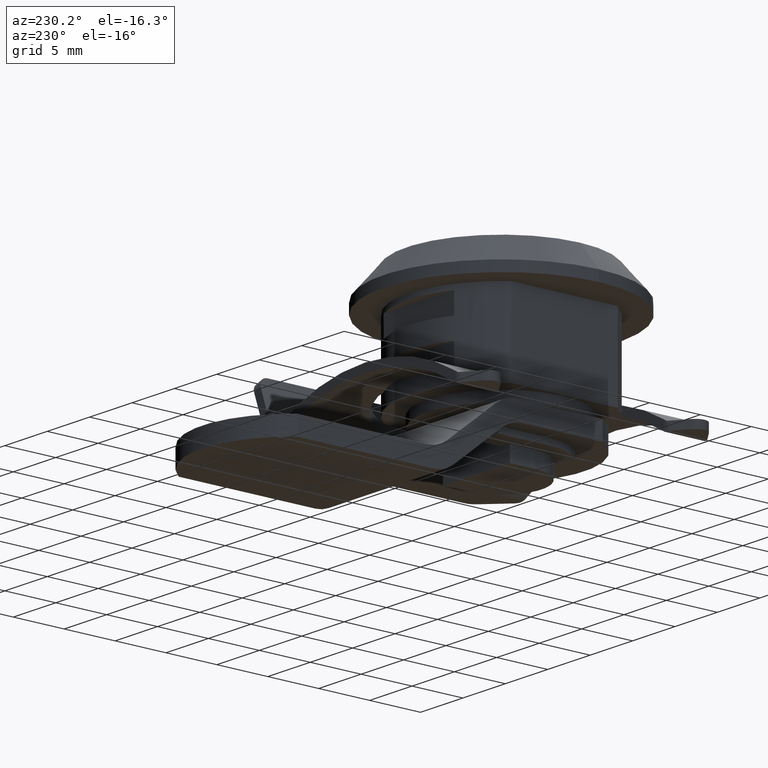
[diagram: clean part render]
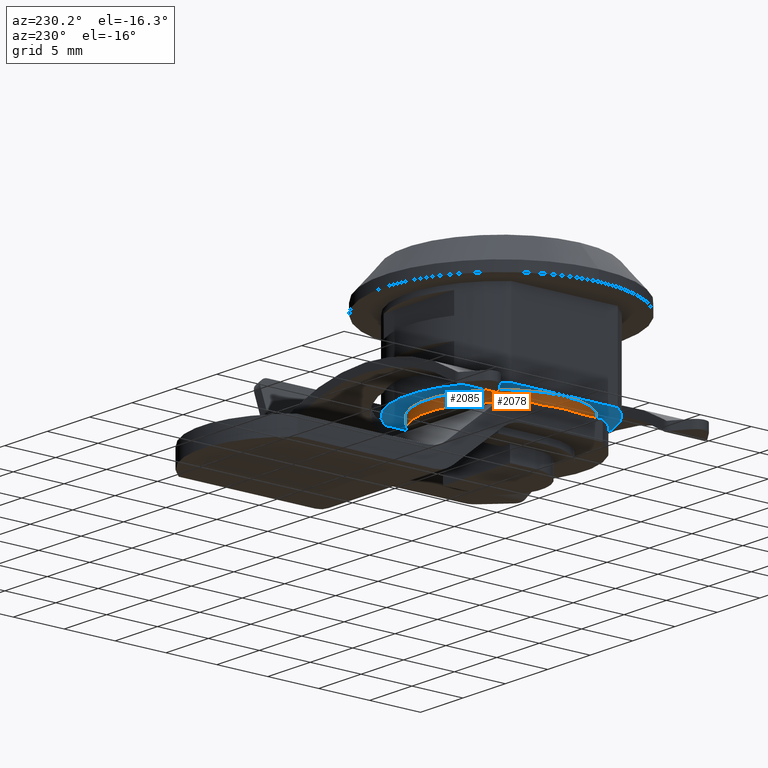
[diagram: same view with the hole feature highlighted: cylindrical wall and planar end face, labeled with their STEP entity ids]
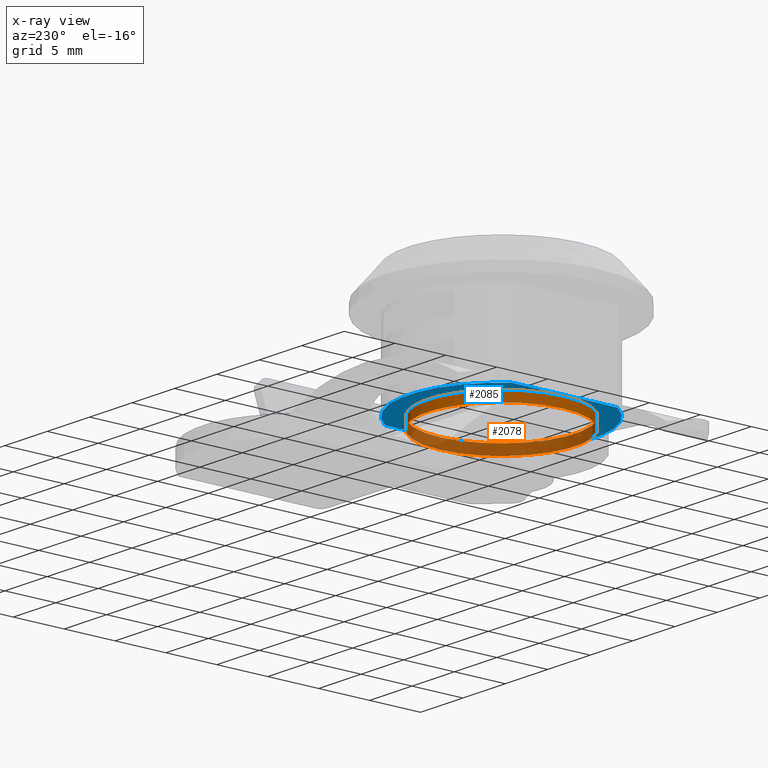
[diagram: x-ray of the same camera — body ghosted, the hole faces saturated]
A machine part, auxiliary view. The highlighted faces form one hole feature of diameter 14.5 mm: the cylindrical wall (entity #2078, orange) and its adjacent planar end face (entity #2085, blue) — they share a circular edge in the B-rep.
The next image is the same camera in x-ray (body ghosted, the hole faces saturated) — the bore reads through the body.
Wall:
#73=FACE_BOUND('',#288,.T.);
#89=CYLINDRICAL_SURFACE('',#2224,7.25);
#162=FACE_OUTER_BOUND('',#287,.T.);
#287=EDGE_LOOP('',(#1514));
#288=EDGE_LOOP('',(#1515));
#793=CIRCLE('',#2225,7.25);
#794=CIRCLE('',#2226,7.25);
#916=VERTEX_POINT('',#3209);
#917=VERTEX_POINT('',#3211);
#1149=EDGE_CURVE('',#916,#916,#793,.T.);
#1150=EDGE_CURVE('',#917,#917,#794,.T.);
#1514=ORIENTED_EDGE('',*,*,#1149,.F.);
#1515=ORIENTED_EDGE('',*,*,#1150,.F.);
#2078=ADVANCED_FACE('',(#162,#73),#89,.T.);
#2224=AXIS2_PLACEMENT_3D('',#3208,#2577,#2578);
#2225=AXIS2_PLACEMENT_3D('',#3210,#2579,#2580);
#2226=AXIS2_PLACEMENT_3D('',#3212,#2581,#2582);
#2577=DIRECTION('center_axis',(0.,0.,-1.));
#2578=DIRECTION('ref_axis',(1.,0.,0.));
#2579=DIRECTION('center_axis',(0.,0.,-1.));
#2580=DIRECTION('ref_axis',(1.,0.,0.));
#2581=DIRECTION('center_axis',(0.,0.,1.));
#2582=DIRECTION('ref_axis',(1.,0.,0.));
#3208=CARTESIAN_POINT('Origin',(0.,0.,-11.6));
#3209=CARTESIAN_POINT('',(-7.25,8.87868929381831E-16,-12.6));
#3210=CARTESIAN_POINT('Origin',(0.,0.,-12.6));
#3211=CARTESIAN_POINT('',(-7.25,8.87868929381831E-16,-11.6));
#3212=CARTESIAN_POINT('Origin',(0.,0.,-11.6));
End face:
#80=FACE_BOUND('',#302,.T.);
#169=FACE_OUTER_BOUND('',#301,.T.);
#301=EDGE_LOOP('',(#1558,#1559,#1560,#1561));
#302=EDGE_LOOP('',(#1562));
#455=LINE('',#3222,#652);
#459=LINE('',#3231,#656);
#652=VECTOR('',#2590,10.4513157066467);
#656=VECTOR('',#2596,10.4513157066467);
#794=CIRCLE('',#2226,7.25);
#798=CIRCLE('',#2235,9.1);
#799=CIRCLE('',#2237,9.1);
#917=VERTEX_POINT('',#3211);
#919=VERTEX_POINT('',#3216);
#921=VERTEX_POINT('',#3220);
#923=VERTEX_POINT('',#3225);
#925=VERTEX_POINT('',#3229);
#1150=EDGE_CURVE('',#917,#917,#794,.T.);
#1154=EDGE_CURVE('',#919,#921,#455,.T.);
#1158=EDGE_CURVE('',#923,#925,#459,.T.);
#1162=EDGE_CURVE('',#921,#923,#798,.T.);
#1163=EDGE_CURVE('',#925,#919,#799,.T.);
#1558=ORIENTED_EDGE('',*,*,#1154,.T.);
#1559=ORIENTED_EDGE('',*,*,#1162,.T.);
#1560=ORIENTED_EDGE('',*,*,#1158,.T.);
#1561=ORIENTED_EDGE('',*,*,#1163,.T.);
#1562=ORIENTED_EDGE('',*,*,#1150,.T.);
#1993=PLANE('',#2238);
#2085=ADVANCED_FACE('',(#169,#80),#1993,.F.);
#2226=AXIS2_PLACEMENT_3D('',#3212,#2581,#2582);
#2235=AXIS2_PLACEMENT_3D('',#3238,#2607,#2608);
#2237=AXIS2_PLACEMENT_3D('',#3240,#2611,#2612);
#2238=AXIS2_PLACEMENT_3D('',#3241,#2613,#2614);
#2581=DIRECTION('center_axis',(0.,0.,1.));
#2582=DIRECTION('ref_axis',(1.,0.,0.));
#2590=DIRECTION('',(1.11022302462516E-16,1.,0.));
#2596=DIRECTION('',(-1.11022302462516E-16,-1.,0.));
#2607=DIRECTION('center_axis',(0.,0.,-1.));
#2608=DIRECTION('ref_axis',(1.,0.,0.));
#2611=DIRECTION('center_axis',(0.,0.,-1.));
#2612=DIRECTION('ref_axis',(1.,0.,0.));
#2613=DIRECTION('center_axis',(0.,0.,1.));
#2614=DIRECTION('ref_axis',(1.,0.,0.));
#3211=CARTESIAN_POINT('',(-7.25,8.87868929381831E-16,-11.6));
#3212=CARTESIAN_POINT('Origin',(0.,0.,-11.6));
#3216=CARTESIAN_POINT('',(-7.45,-5.22565785332335,-11.6));
#3220=CARTESIAN_POINT('',(-7.45,5.22565785332335,-11.6));
#3222=CARTESIAN_POINT('',(-7.45,-4.75393721730105,-11.6));
#3225=CARTESIAN_POINT('',(7.45,5.22565785332335,-11.6));
#3229=CARTESIAN_POINT('',(7.45,-5.22565785332335,-11.6));
#3231=CARTESIAN_POINT('',(7.45,4.87696832265877,-11.6));
#3238=CARTESIAN_POINT('Origin',(0.,0.,-11.6));
#3240=CARTESIAN_POINT('Origin',(0.,0.,-11.6));
#3241=CARTESIAN_POINT('Origin',(4.99544149530636E-16,-2.03337550297648E-16,
-11.6));